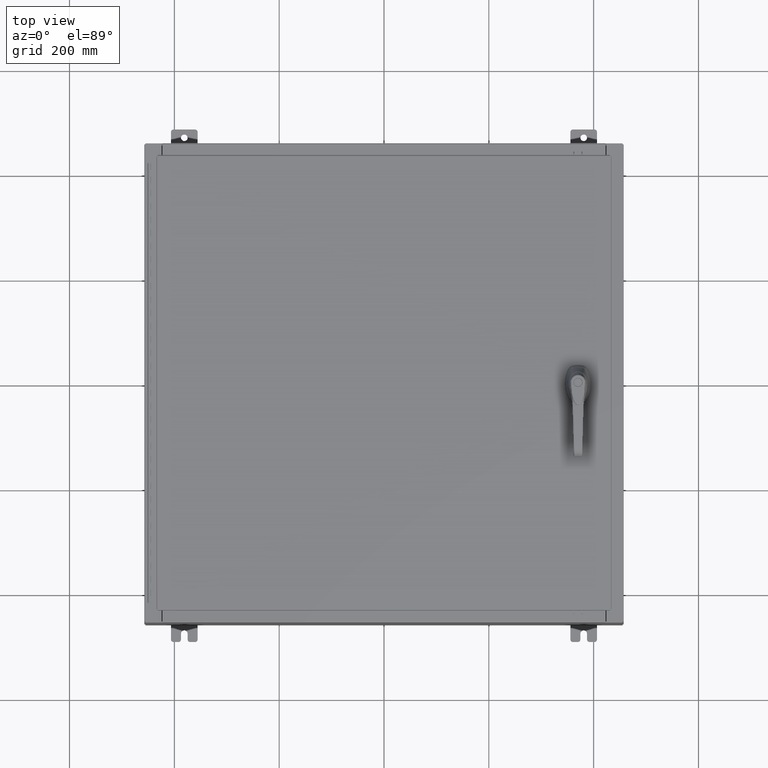
[diagram: clean part render]
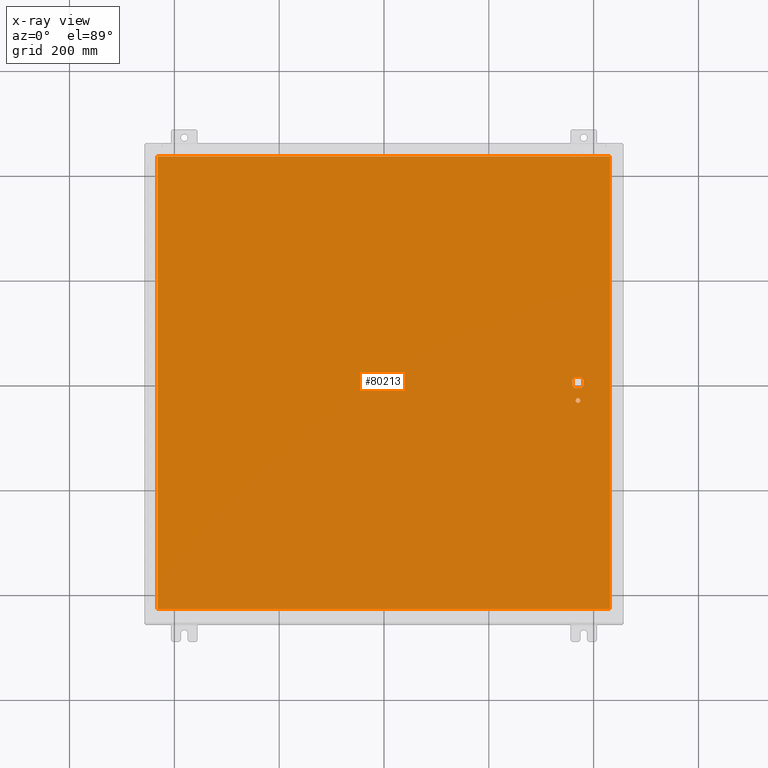
[diagram: x-ray — body ghosted, one internal face saturated and labeled with its STEP entity id]
A machine part, top view, then the same camera in x-ray: the body is ghosted and one INTERNAL B-rep face — a face not visible from any outside direction — is saturated and labeled: STEP entity #80213.
In plain terms, the highlighted planar face has unit normal (0, 0, -1).
Its self-contained STEP definition (entity closure, byte-faithful):
#284 = CARTESIAN_POINT ( 'NONE',  ( 14.57799999999999900, 0.0000000000000000000, -0.07470000000000003000 ) ) ;
#2873 = VERTEX_POINT ( 'NONE', #62576 ) ;
#3660 = AXIS2_PLACEMENT_3D ( 'NONE', #284, #67205, #9900 ) ;
#4094 = CARTESIAN_POINT ( 'NONE',  ( -16.99029999999999400, 17.00630000000000300, -0.07470000000000019700 ) ) ;
#5725 = AXIS2_PLACEMENT_3D ( 'NONE', #46984, #113855, #56604 ) ;
#5794 = DIRECTION ( 'NONE',  ( -1.000000000000000000, 0.0000000000000000000, 0.0000000000000000000 ) ) ;
#6994 = LINE ( 'NONE', #38035, #96731 ) ;
#7688 = CARTESIAN_POINT ( 'NONE',  ( 14.57799999999999900, 0.0000000000000000000, -0.07470000000000003000 ) ) ;
#7696 = CARTESIAN_POINT ( 'NONE',  ( 16.99029999999999800, 17.00630000000000700, -0.07470000000000000300 ) ) ;
#8001 = CARTESIAN_POINT ( 'NONE',  ( 14.98099999999992700, 8.175868191945441800E-014, -0.07470000000000003000 ) ) ;
#9140 = AXIS2_PLACEMENT_3D ( 'NONE', #28664, #38276, #105211 ) ;
#9225 = FACE_BOUND ( 'NONE', #11040, .T. ) ;
#9699 = VECTOR ( 'NONE', #23230, 39.37007874015748100 ) ;
#9900 = DIRECTION ( 'NONE',  ( -1.000000000000000000, -1.776356839400246700E-015, 0.0000000000000000000 ) ) ;
#11040 = EDGE_LOOP ( 'NONE', ( #58717, #49314 ) ) ;
#11500 = VERTEX_POINT ( 'NONE', #26074 ) ;
#12218 = CARTESIAN_POINT ( 'NONE',  ( -16.99029999999999800, -17.00630000000000000, -0.07470000000000000300 ) ) ;
#12555 = EDGE_CURVE ( 'NONE', #62085, #49829, #49020, .T. ) ;
#13401 = EDGE_CURVE ( 'NONE', #2873, #26255, #6994, .T. ) ;
#13667 = DIRECTION ( 'NONE',  ( 0.0000000000000000000, -1.000000000000000000, 0.0000000000000000000 ) ) ;
#14429 = DIRECTION ( 'NONE',  ( -0.0000000000000000000, -0.0000000000000000000, 1.000000000000000000 ) ) ;
#16454 = VERTEX_POINT ( 'NONE', #40565 ) ;
#17137 = EDGE_CURVE ( 'NONE', #16454, #69762, #81024, .T. ) ;
#17303 = DIRECTION ( 'NONE',  ( -1.000000000000000000, -5.329070518200740300E-015, 0.0000000000000000000 ) ) ;
#19196 = DIRECTION ( 'NONE',  ( 1.000000000000000000, 0.0000000000000000000, 0.0000000000000000000 ) ) ;
#19752 = ORIENTED_EDGE ( 'NONE', *, *, #74046, .F. ) ;
#20670 = VERTEX_POINT ( 'NONE', #41793 ) ;
#22500 = CARTESIAN_POINT ( 'NONE',  ( 14.37777262924369000, 0.4029999999999252000, -0.07470000000000003000 ) ) ;
#23188 = VERTEX_POINT ( 'NONE', #69857 ) ;
#23230 = DIRECTION ( 'NONE',  ( -1.000000000000000000, -0.0000000000000000000, -0.0000000000000000000 ) ) ;
#23293 = AXIS2_PLACEMENT_3D ( 'NONE', #40726, #107635, #50359 ) ;
#24573 = CARTESIAN_POINT ( 'NONE',  ( 0.0000000000000000000, 0.4029999999999252000, -0.07470000000000003000 ) ) ;
#25285 = VERTEX_POINT ( 'NONE', #7696 ) ;
#26021 = DIRECTION ( 'NONE',  ( 1.000000000000000000, -0.0000000000000000000, -0.0000000000000000000 ) ) ;
#26074 = CARTESIAN_POINT ( 'NONE',  ( 14.77822737075630900, 0.4029999999999250300, -0.07470000000000003000 ) ) ;
#26255 = VERTEX_POINT ( 'NONE', #109479 ) ;
#26684 = DIRECTION ( 'NONE',  ( -0.0000000000000000000, -0.0000000000000000000, 1.000000000000000000 ) ) ;
#28664 = CARTESIAN_POINT ( 'NONE',  ( 0.0000000000000000000, 0.0000000000000000000, -0.07470000000000000300 ) ) ;
#29387 = ORIENTED_EDGE ( 'NONE', *, *, #12555, .T. ) ;
#32886 = VECTOR ( 'NONE', #5794, 39.37007874015748100 ) ;
#34847 = ORIENTED_EDGE ( 'NONE', *, *, #82318, .T. ) ;
#35147 = LINE ( 'NONE', #70967, #9699 ) ;
#36791 = LINE ( 'NONE', #108255, #110089 ) ;
#36975 = CARTESIAN_POINT ( 'NONE',  ( 14.98099999999992700, -0.2002273707563067300, -0.07470000000000003000 ) ) ;
#38035 = CARTESIAN_POINT ( 'NONE',  ( 0.0000000000000000000, -0.4029999999999252000, -0.07470000000000003000 ) ) ;
#38276 = DIRECTION ( 'NONE',  ( 0.0000000000000000000, 0.0000000000000000000, -1.000000000000000000 ) ) ;
#40565 = CARTESIAN_POINT ( 'NONE',  ( 14.74950000000000100, -1.338000000000000100, -0.07470000000000003000 ) ) ;
#40726 = CARTESIAN_POINT ( 'NONE',  ( 14.57799999999999900, -1.338000000000000100, -0.07470000000000003000 ) ) ;
#41355 = EDGE_LOOP ( 'NONE', ( #105315, #60343, #81769, #34847, #29387, #41900, #50692, #79677 ) ) ;
#41793 = CARTESIAN_POINT ( 'NONE',  ( 16.99029999999999800, -17.00630000000000000, -0.07470000000000000300 ) ) ;
#41900 = ORIENTED_EDGE ( 'NONE', *, *, #93888, .T. ) ;
#46961 = EDGE_CURVE ( 'NONE', #26255, #59889, #82182, .T. ) ;
#46984 = CARTESIAN_POINT ( 'NONE',  ( 14.57799999999999900, 0.0000000000000000000, -0.07470000000000003000 ) ) ;
#47507 = PLANE ( 'NONE',  #9140 ) ;
#49020 = CIRCLE ( 'NONE', #96374, 0.4499999999999168000 ) ;
#49314 = ORIENTED_EDGE ( 'NONE', *, *, #59678, .T. ) ;
#49829 = VERTEX_POINT ( 'NONE', #99105 ) ;
#50359 = DIRECTION ( 'NONE',  ( -1.000000000000000000, 0.0000000000000000000, 0.0000000000000000000 ) ) ;
#50692 = ORIENTED_EDGE ( 'NONE', *, *, #82594, .T. ) ;
#56604 = DIRECTION ( 'NONE',  ( -1.000000000000000000, -1.776356839400246700E-015, 0.0000000000000000000 ) ) ;
#58535 = LINE ( 'NONE', #4094, #83935 ) ;
#58717 = ORIENTED_EDGE ( 'NONE', *, *, #17137, .T. ) ;
#59299 = CARTESIAN_POINT ( 'NONE',  ( -16.99029999999999400, 17.00630000000000700, -0.07470000000000000300 ) ) ;
#59517 = LINE ( 'NONE', #71124, #87907 ) ;
#59678 = EDGE_CURVE ( 'NONE', #69762, #16454, #121933, .T. ) ;
#59889 = VERTEX_POINT ( 'NONE', #36975 ) ;
#60193 = VERTEX_POINT ( 'NONE', #12218 ) ;
#60343 = ORIENTED_EDGE ( 'NONE', *, *, #68179, .F. ) ;
#62085 = VERTEX_POINT ( 'NONE', #22500 ) ;
#62126 = VERTEX_POINT ( 'NONE', #107592 ) ;
#62576 = CARTESIAN_POINT ( 'NONE',  ( 14.37777262924369000, -0.4029999999999250300, -0.07470000000000003000 ) ) ;
#63122 = FACE_OUTER_BOUND ( 'NONE', #73392, .T. ) ;
#66471 = CIRCLE ( 'NONE', #81176, 0.4499999999999168000 ) ;
#67205 = DIRECTION ( 'NONE',  ( -0.0000000000000000000, -0.0000000000000000000, 1.000000000000000000 ) ) ;
#68179 = EDGE_CURVE ( 'NONE', #23188, #59889, #83067, .T. ) ;
#69762 = VERTEX_POINT ( 'NONE', #93043 ) ;
#69857 = CARTESIAN_POINT ( 'NONE',  ( 14.98099999999992700, 0.2002273707563075900, -0.07470000000000003000 ) ) ;
#70967 = CARTESIAN_POINT ( 'NONE',  ( 16.99029999999999800, 17.00630000000000700, -0.07469999999999910000 ) ) ;
#71124 = CARTESIAN_POINT ( 'NONE',  ( 16.99029999999999800, -17.00629999999999600, -0.07470000000000019700 ) ) ;
#71754 = CARTESIAN_POINT ( 'NONE',  ( 14.57799999999999900, -1.338000000000000100, -0.07470000000000003000 ) ) ;
#73392 = EDGE_LOOP ( 'NONE', ( #107143, #88378, #19752, #93066 ) ) ;
#74046 = EDGE_CURVE ( 'NONE', #98685, #60193, #58535, .T. ) ;
#74653 = DIRECTION ( 'NONE',  ( -0.0000000000000000000, -0.0000000000000000000, 1.000000000000000000 ) ) ;
#76655 = VECTOR ( 'NONE', #26021, 39.37007874015748100 ) ;
#77029 = EDGE_CURVE ( 'NONE', #25285, #98685, #35147, .T. ) ;
#77776 = EDGE_CURVE ( 'NONE', #23188, #11500, #66471, .T. ) ;
#79677 = ORIENTED_EDGE ( 'NONE', *, *, #13401, .T. ) ;
#80213 = ADVANCED_FACE ( 'NONE', ( #9225, #63122, #107966 ), #47507, .T. ) ;
#80751 = DIRECTION ( 'NONE',  ( 0.0000000000000000000, 1.000000000000000000, 0.0000000000000000000 ) ) ;
#81024 = CIRCLE ( 'NONE', #115024, 0.1715000000000011500 ) ;
#81176 = AXIS2_PLACEMENT_3D ( 'NONE', #83989, #26684, #93596 ) ;
#81387 = DIRECTION ( 'NONE',  ( -1.000000000000000000, 0.0000000000000000000, 0.0000000000000000000 ) ) ;
#81769 = ORIENTED_EDGE ( 'NONE', *, *, #77776, .T. ) ;
#82182 = CIRCLE ( 'NONE', #5725, 0.4499999999999168000 ) ;
#82318 = EDGE_CURVE ( 'NONE', #11500, #62085, #109175, .T. ) ;
#82594 = EDGE_CURVE ( 'NONE', #62126, #2873, #113600, .T. ) ;
#83067 = LINE ( 'NONE', #8001, #105475 ) ;
#83935 = VECTOR ( 'NONE', #13667, 39.37007874015748100 ) ;
#83989 = CARTESIAN_POINT ( 'NONE',  ( 14.57799999999999900, 0.0000000000000000000, -0.07470000000000003000 ) ) ;
#87907 = VECTOR ( 'NONE', #80751, 39.37007874015748100 ) ;
#88378 = ORIENTED_EDGE ( 'NONE', *, *, #97657, .F. ) ;
#92534 = CARTESIAN_POINT ( 'NONE',  ( -16.99029999999999800, -17.00630000000000000, -0.07470000000000019700 ) ) ;
#93043 = CARTESIAN_POINT ( 'NONE',  ( 14.40649999999999800, -1.338000000000000100, -0.07470000000000003000 ) ) ;
#93066 = ORIENTED_EDGE ( 'NONE', *, *, #77029, .F. ) ;
#93596 = DIRECTION ( 'NONE',  ( -1.000000000000000000, -5.329070518200740300E-015, 0.0000000000000000000 ) ) ;
#93888 = EDGE_CURVE ( 'NONE', #49829, #62126, #36791, .T. ) ;
#96374 = AXIS2_PLACEMENT_3D ( 'NONE', #7688, #74653, #17303 ) ;
#96731 = VECTOR ( 'NONE', #19196, 39.37007874015748100 ) ;
#97657 = EDGE_CURVE ( 'NONE', #60193, #20670, #102044, .T. ) ;
#98638 = DIRECTION ( 'NONE',  ( 0.0000000000000000000, -1.000000000000000000, 0.0000000000000000000 ) ) ;
#98685 = VERTEX_POINT ( 'NONE', #59299 ) ;
#99105 = CARTESIAN_POINT ( 'NONE',  ( 14.17500000000007400, 0.2002273707563075900, -0.07470000000000003000 ) ) ;
#102044 = LINE ( 'NONE', #92534, #76655 ) ;
#105211 = DIRECTION ( 'NONE',  ( -1.000000000000000000, 0.0000000000000000000, -0.0000000000000000000 ) ) ;
#105315 = ORIENTED_EDGE ( 'NONE', *, *, #46961, .T. ) ;
#105475 = VECTOR ( 'NONE', #112935, 39.37007874015748100 ) ;
#107143 = ORIENTED_EDGE ( 'NONE', *, *, #107916, .F. ) ;
#107592 = CARTESIAN_POINT ( 'NONE',  ( 14.17500000000007400, -0.2002273707563079800, -0.07470000000000003000 ) ) ;
#107635 = DIRECTION ( 'NONE',  ( -0.0000000000000000000, -0.0000000000000000000, 1.000000000000000000 ) ) ;
#107916 = EDGE_CURVE ( 'NONE', #20670, #25285, #59517, .T. ) ;
#107966 = FACE_BOUND ( 'NONE', #41355, .T. ) ;
#108255 = CARTESIAN_POINT ( 'NONE',  ( 14.17500000000007400, 0.0000000000000000000, -0.07470000000000003000 ) ) ;
#109175 = LINE ( 'NONE', #24573, #32886 ) ;
#109479 = CARTESIAN_POINT ( 'NONE',  ( 14.77822737075630900, -0.4029999999999252000, -0.07470000000000003000 ) ) ;
#110089 = VECTOR ( 'NONE', #98638, 39.37007874015748100 ) ;
#112935 = DIRECTION ( 'NONE',  ( 5.457491617345625800E-015, -1.000000000000000000, 0.0000000000000000000 ) ) ;
#113600 = CIRCLE ( 'NONE', #3660, 0.4499999999999168000 ) ;
#113855 = DIRECTION ( 'NONE',  ( -0.0000000000000000000, -0.0000000000000000000, 1.000000000000000000 ) ) ;
#115024 = AXIS2_PLACEMENT_3D ( 'NONE', #71754, #14429, #81387 ) ;
#121933 = CIRCLE ( 'NONE', #23293, 0.1715000000000011500 ) ;